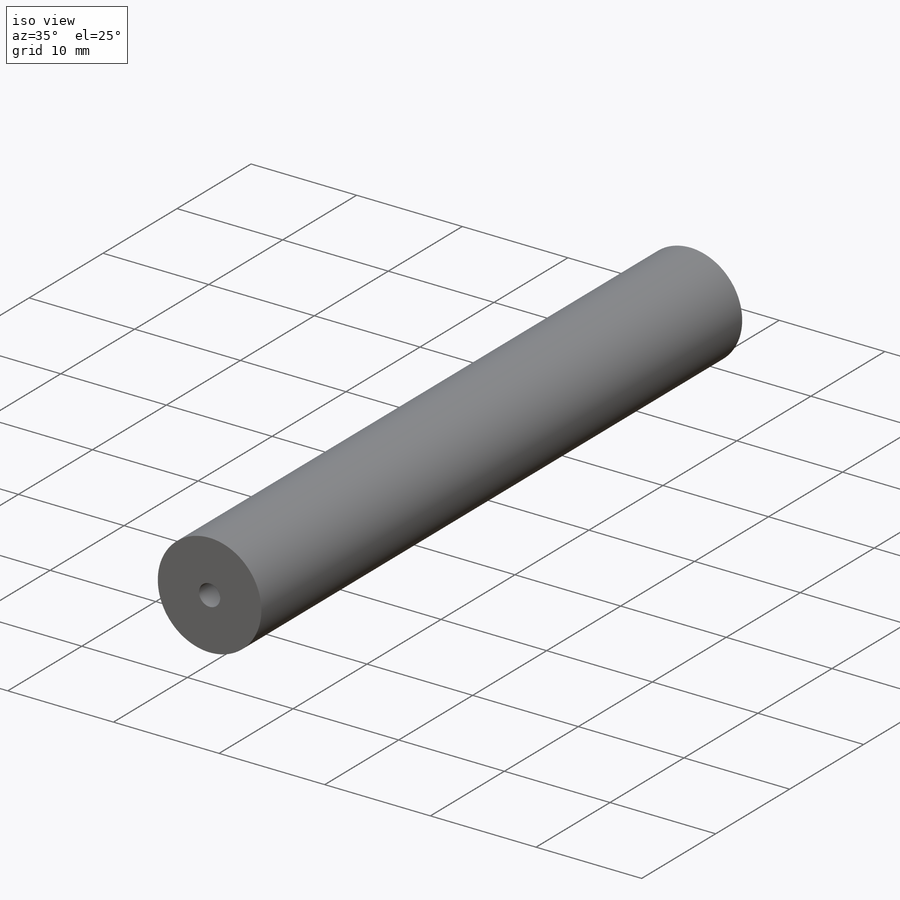
[diagram: iso view]
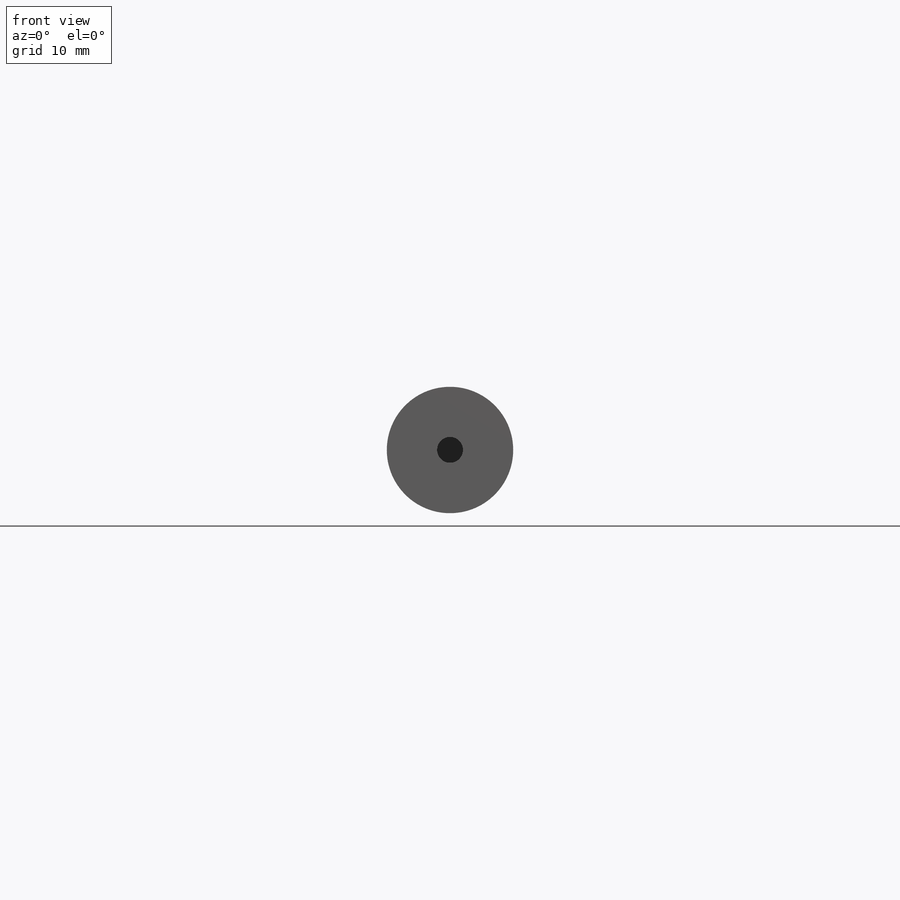
[diagram: front view]
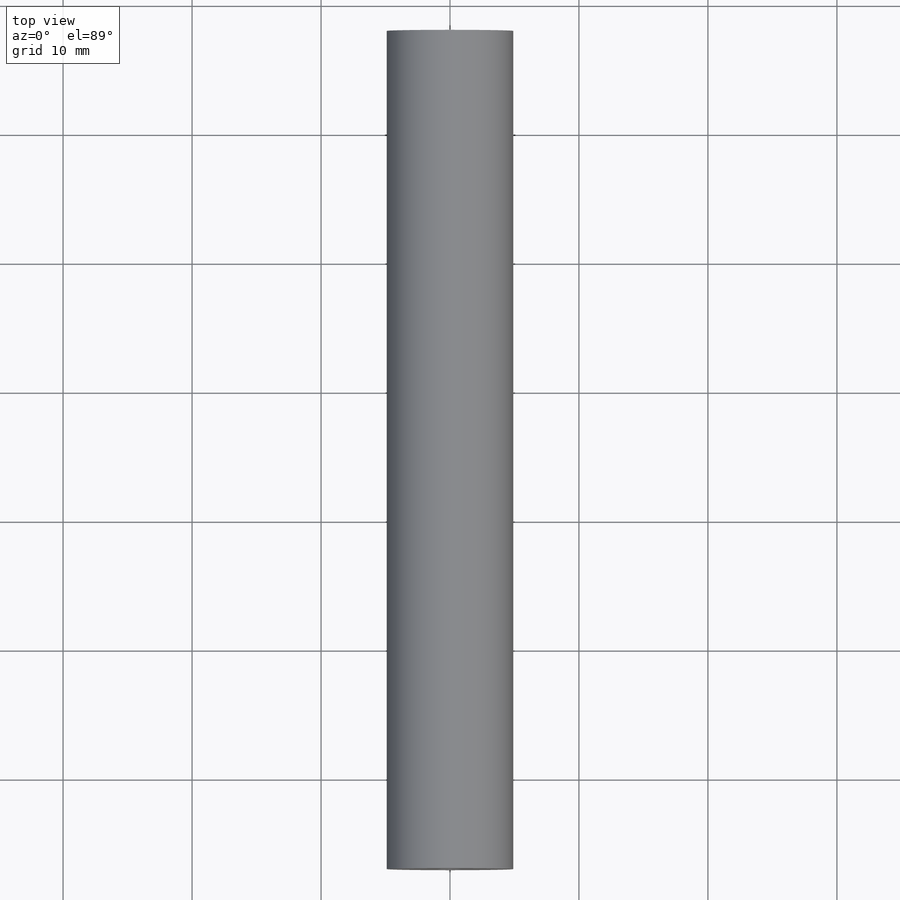
[diagram: top view]
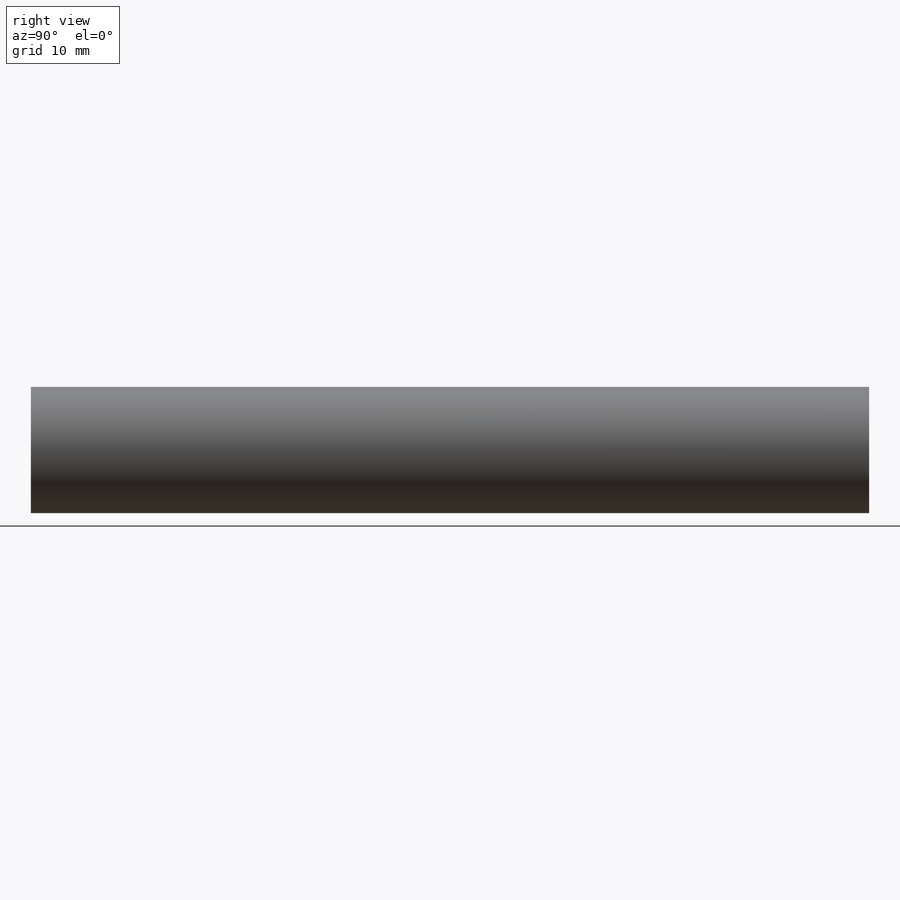
[diagram: right view]
SOLIDWORKS PART (.sldprt)
format: sldprt  version: not decoded by parser v0  size: 370,688 bytes
history: native  units: mm
features: sketch x7, extrude x4, plane x3, cut_extrude x2, material x1, delete_body x1, mirror x1 (+10 scaffold rows collapsed)
feature tree (29):
  scaffold x10  (default folders/planes/origin — collapsed)
  material  "uhlíková ocel 7850"
  plane  "Přední rovina"
  plane  "Horní rovina"
  plane  "Pravá rovina"
  sketch  "Skica1"  dims[D1=3.5mm D2=10.0mm D3=60.0mm]
  extrude  "Přidat vysunutím1"  Depth=2mm
  sketch  "Skica3"  dims[D3=2.0mm D1=10.0mm D2=10.0mm D5=1.0mm D6=1.0mm D7=5.0mm]
  delete_body  "Tělo-Odstranit1"
  mirror  "Zrcadlit3"
  sketch  "Skica4"  dims[D1=5.0mm]
  extrude  "Přidat vysunutím2"  Depth=65mm
  sketch  "Skica5"  dims[D1=2.0mm]
  cut_extrude  "Odebrat vysunutím1"  Depth=5mm
  sketch  "Skica6"  dims[D1=5.0mm]
  extrude  "Přidat vysunutím3"  [1 undecoded]
  sketch  "Skica7"  dims[D1=0.0mm]
  extrude  "Přidat vysunutím4"  Depth=2mm
  sketch  "Skica8"
  cut_extrude  "Odebrat vysunutím2"  Depth=5mm
decode coverage: 11 of 15 modeling features carry decoded parameters
note: 1 parameter value undecoded
note: suppression state not decoded; provenance and decode notes live in map.json
